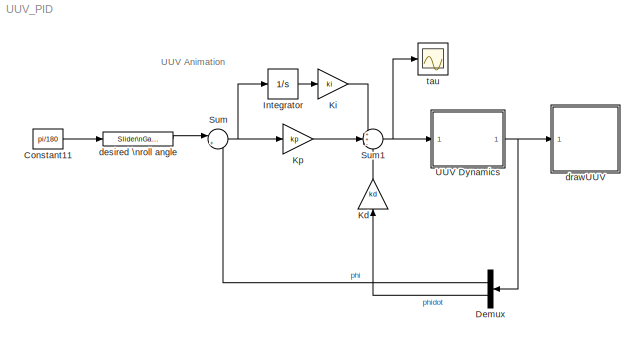
MODEL UUV_PID
KIND model
BLOCK [Constant] Constant11
  SID = 19
  Value = pi/180
BLOCK [Demux] Demux
  DisplayOption = bar
  Outputs = 2
  Ports = [1, 2]
  SID = 33
BLOCK [Integrator] Integrator
  Ports = [1, 1]
  SID = 35
BLOCK [Gain] Kd
  Gain = kd
  OutDataTypeStr = Inherit: Inherit via internal rule
  ParamDataTypeStr = Inherit: Inherit via internal rule
  SID = 31
  SaturateOnIntegerOverflow = off
BLOCK [Gain] Ki
  Gain = ki
  OutDataTypeStr = Inherit: Inherit via internal rule
  ParamDataTypeStr = Inherit: Inherit via internal rule
  SID = 36
  SaturateOnIntegerOverflow = off
BLOCK [Gain] Kp
  Gain = kp
  OutDataTypeStr = Inherit: Inherit via internal rule
  ParamDataTypeStr = Inherit: Inherit via internal rule
  SID = 32
  SaturateOnIntegerOverflow = off
BLOCK [Sum] Sum
  IconShape = round
  InputSameDT = off
  Inputs = |+-
  OutDataTypeStr = Inherit: Inherit via internal rule
  Ports = [2, 1]
  SID = 28
  SaturateOnIntegerOverflow = off
BLOCK [Sum] Sum1
  IconShape = round
  InputSameDT = off
  Inputs = ++-
  OutDataTypeStr = Inherit: Inherit via internal rule
  Ports = [3, 1]
  SID = 29
  SaturateOnIntegerOverflow = off
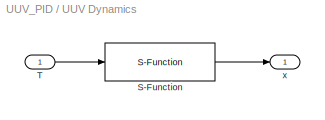
BLOCK [SubSystem] UUV Dynamics
  FunctionWithSeparateData = off
  MaskHideContents = off
  MinAlgLoopOccurrences = off
  Opaque = off
  Ports = [1, 1]
  PropExecContextOutsideSubsystem = off
  RTWSystemCode = Auto
  RequestExecContextInheritance = off
  SID = 11
BLOCK [S-Function] UUV Dynamics/S-Function
  EnableBusSupport = off
  FunctionName = UUV_dynamics
  Parameters = P
  Ports = [1, 1]
  SID = 15
BLOCK [Inport] UUV Dynamics/T
  IconDisplay = Port number
  SID = 12
BLOCK [Outport] UUV Dynamics/x
  IconDisplay = Port number
  SID = 25
BLOCK [Reference] desired \nroll angle  REF=simulink/Math\nOperations/Slider\nGain
  Ports = [1, 1]
  SID = 20
  SourceBlock = simulink/Math\nOperations/Slider\nGain
  SourceType = Slider Gain
  gain = 30
  high = 100
  low = -100
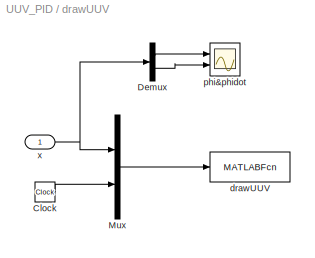
BLOCK [SubSystem] drawUUV
  FunctionWithSeparateData = off
  MaskDisplay = image(imread('tv.jpg'))
  MaskHideContents = off
  MaskIconFrame = on
  MaskIconOpaque = on
  MaskIconRotate = none
  MaskIconUnits = autoscale
  MaskInitialization = % drawing parameters\nMajorAxis = 10;\nMinorAxis = 6;\nC_M = [0;-4];\n
  MaskPortRotate = default
  MinAlgLoopOccurrences = off
  Opaque = off
  Ports = [1]
  PropExecContextOutsideSubsystem = off
  RTWSystemCode = Auto
  RequestExecContextInheritance = off
  SID = 4
BLOCK [Clock] drawUUV/Clock
  SID = 6
BLOCK [Demux] drawUUV/Demux
  DisplayOption = bar
  Outputs = 2
  Ports = [1, 2]
  SID = 22
BLOCK [Mux] drawUUV/Mux
  DisplayOption = bar
  Inputs = 2
  Ports = [2, 1]
  SID = 7
BLOCK [MATLABFcn] drawUUV/drawUUV
  MATLABFcn = drawUUV(u,MajorAxis,MinorAxis,C_M)
  OutputDimensions = 0
  Ports = [1]
  SID = 8
  SampleTime = 0.1
BLOCK [Scope] drawUUV/phi&phidot
  DataFormat = StructureWithTime
  Floating = off
  LimitDataPoints = off
  NumInputPorts = 2
  Ports = [2]
  SID = 21
  SampleTime = 0
  ShowLegends = off
  TimeRange = 40
  YMax = 0.8~0.4
  YMin = 0~0
BLOCK [Inport] drawUUV/x
  IconDisplay = Port number
  SID = 26
BLOCK [Scope] tau
  DataFormat = StructureWithTime
  Floating = off
  NumInputPorts = 1
  Ports = [1]
  SID = 34
  SampleTime = 0
  SaveName = ScopeData1
  ShowLegends = off
  TimeRange = 40
  YMax = 50
  YMin = 0
ANNOTATION (root): UUV Animation
LINE Constant11:1 -> desired \nroll angle:1
LINE Demux:1 -> Sum:2
LINE Demux:2 -> Kd:1
LINE Integrator:1 -> Ki:1
LINE Kd:1 -> Sum1:3
LINE Ki:1 -> Sum1:1
LINE Kp:1 -> Sum1:2
NET Sum1:1 -> UUV Dynamics:1, tau:1
NET Sum:1 -> Integrator:1, Kp:1
LINE UUV Dynamics/S-Function:1 -> UUV Dynamics/x:1
LINE UUV Dynamics/T:1 -> UUV Dynamics/S-Function:1
NET UUV Dynamics:1 -> Demux:1, drawUUV:1
LINE desired \nroll angle:1 -> Sum:1
LINE drawUUV/Clock:1 -> drawUUV/Mux:2
LINE drawUUV/Demux:1 -> drawUUV/phi&phidot:1
LINE drawUUV/Demux:2 -> drawUUV/phi&phidot:2
LINE drawUUV/Mux:1 -> drawUUV/drawUUV:1
NET drawUUV/x:1 -> drawUUV/Demux:1, drawUUV/Mux:1
note: NET lines group one-source signal fan-out (src -> all destinations, sorted); 1:1 wires keep LINE
